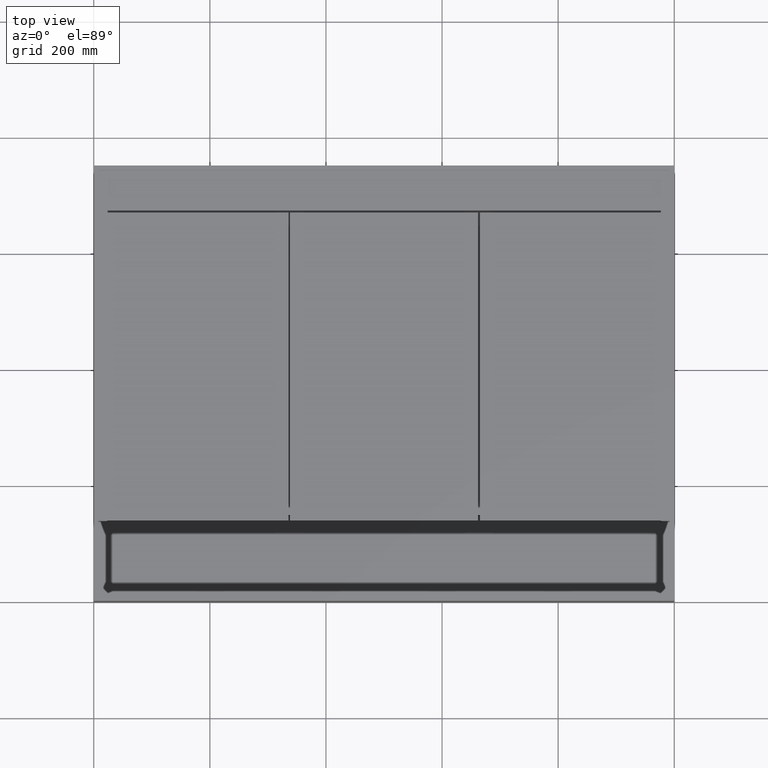
[diagram: clean part render]
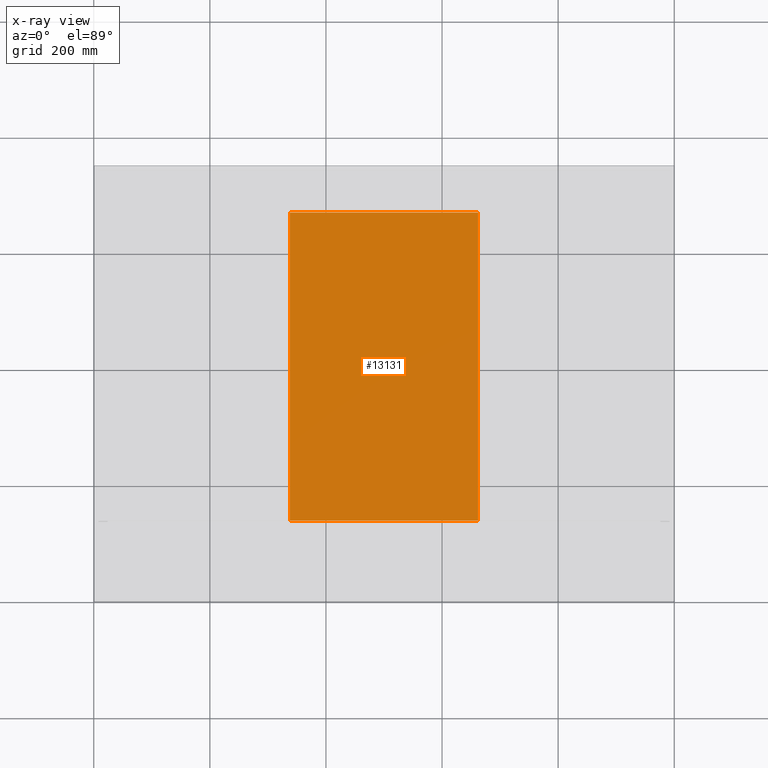
[diagram: x-ray — body ghosted, one internal face saturated and labeled with its STEP entity id]
A machine part, top view, then the same camera in x-ray: the body is ghosted and one INTERNAL B-rep face — a face not visible from any outside direction — is saturated and labeled: STEP entity #13131.
In plain terms, the highlighted planar face has unit normal (0, -0, 1).
Its self-contained STEP definition (entity closure, byte-faithful):
#264 = VERTEX_POINT ( 'NONE', #7881 ) ;
#1263 = DIRECTION ( 'NONE',  ( 1.000000000000000000, 1.815632585801535128E-36, 0.0000000000000000000 ) ) ;
#1457 = DIRECTION ( 'NONE',  ( -2.090815882686901485E-16, 1.000000000000000000, 0.0000000000000000000 ) ) ;
#1747 = EDGE_CURVE ( 'NONE', #264, #3040, #6250, .T. ) ;
#2172 = DIRECTION ( 'NONE',  ( 1.045407941343450743E-16, -1.000000000000000000, 0.0000000000000000000 ) ) ;
#2606 = PLANE ( 'NONE',  #12193 ) ;
#2951 = EDGE_CURVE ( 'NONE', #13831, #264, #9002, .T. ) ;
#3040 = VERTEX_POINT ( 'NONE', #7917 ) ;
#4505 = DIRECTION ( 'NONE',  ( -1.000000000000000000, -1.815632585801535128E-36, 0.0000000000000000000 ) ) ;
#5913 = VECTOR ( 'NONE', #1457, 1000.000000000000000 ) ;
#5975 = VECTOR ( 'NONE', #2172, 1000.000000000000000 ) ;
#6250 = LINE ( 'NONE', #11698, #6887 ) ;
#6887 = VECTOR ( 'NONE', #17144, 1000.000000000000000 ) ;
#7757 = EDGE_CURVE ( 'NONE', #10211, #13831, #11302, .T. ) ;
#7881 = CARTESIAN_POINT ( 'NONE',  ( 338.0033333300000322, 138.0000000000000000, -5.999999999999939604 ) ) ;
#7917 = CARTESIAN_POINT ( 'NONE',  ( 662.0000000000000000, 138.0000000000000000, -5.999999999999939604 ) ) ;
#8073 = CARTESIAN_POINT ( 'NONE',  ( 0.0000000000000000000, 0.0000000000000000000, -5.999999999999939604 ) ) ;
#8276 = LINE ( 'NONE', #13724, #5913 ) ;
#8808 = ORIENTED_EDGE ( 'NONE', *, *, #1747, .F. ) ;
#9002 = LINE ( 'NONE', #14442, #5975 ) ;
#10066 = VECTOR ( 'NONE', #4505, 1000.000000000000000 ) ;
#10211 = VERTEX_POINT ( 'NONE', #10282 ) ;
#10282 = CARTESIAN_POINT ( 'NONE',  ( 661.9999999999998863, 668.9999000000001388, -5.999999999999939604 ) ) ;
#11302 = LINE ( 'NONE', #16751, #10066 ) ;
#11698 = CARTESIAN_POINT ( 'NONE',  ( 338.0033333300000322, 138.0000000000000000, -5.999999999999939604 ) ) ;
#12193 = AXIS2_PLACEMENT_3D ( 'NONE', #8073, #13531, #1263 ) ;
#12778 = EDGE_CURVE ( 'NONE', #3040, #10211, #8276, .T. ) ;
#13131 = ADVANCED_FACE ( 'NONE', ( #14880 ), #2606, .F. ) ;
#13531 = DIRECTION ( 'NONE',  ( 0.0000000000000000000, -0.0000000000000000000, 1.000000000000000000 ) ) ;
#13566 = ORIENTED_EDGE ( 'NONE', *, *, #7757, .F. ) ;
#13724 = CARTESIAN_POINT ( 'NONE',  ( 661.9999999999998863, 668.9999000000001388, -5.999999999999939604 ) ) ;
#13831 = VERTEX_POINT ( 'NONE', #16977 ) ;
#14442 = CARTESIAN_POINT ( 'NONE',  ( 338.0033333299999754, 668.9999000000001388, -5.999999999999939604 ) ) ;
#14496 = EDGE_LOOP ( 'NONE', ( #15136, #13566, #15781, #8808 ) ) ;
#14880 = FACE_OUTER_BOUND ( 'NONE', #14496, .T. ) ;
#15136 = ORIENTED_EDGE ( 'NONE', *, *, #2951, .F. ) ;
#15781 = ORIENTED_EDGE ( 'NONE', *, *, #12778, .F. ) ;
#16751 = CARTESIAN_POINT ( 'NONE',  ( 338.0033333299999754, 668.9999000000001388, -5.999999999999939604 ) ) ;
#16977 = CARTESIAN_POINT ( 'NONE',  ( 338.0033333299999754, 668.9999000000001388, -5.999999999999939604 ) ) ;
#17144 = DIRECTION ( 'NONE',  ( 1.000000000000000000, 8.566623817737844776E-17, 0.0000000000000000000 ) ) ;